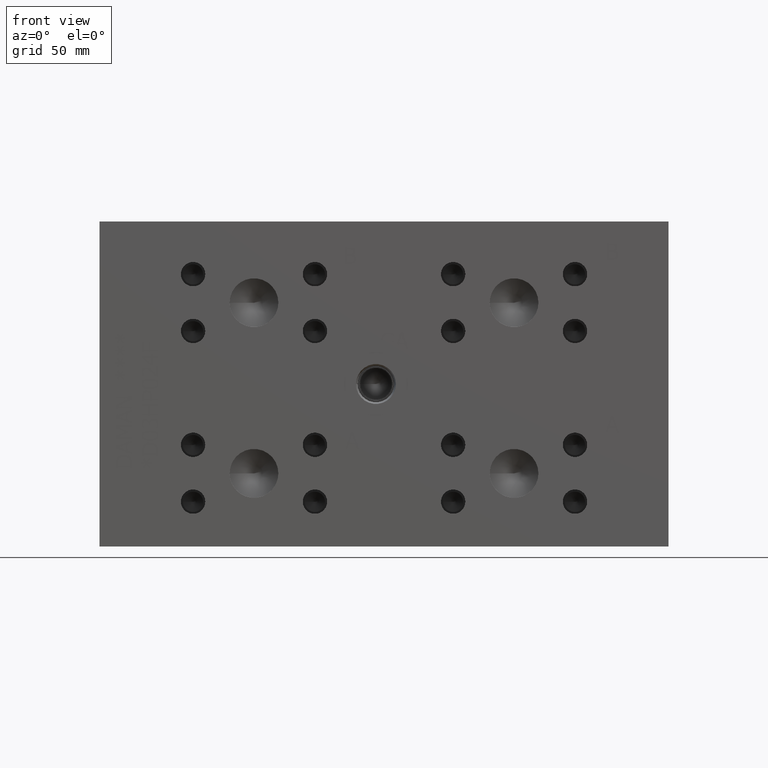
[diagram: clean part render]
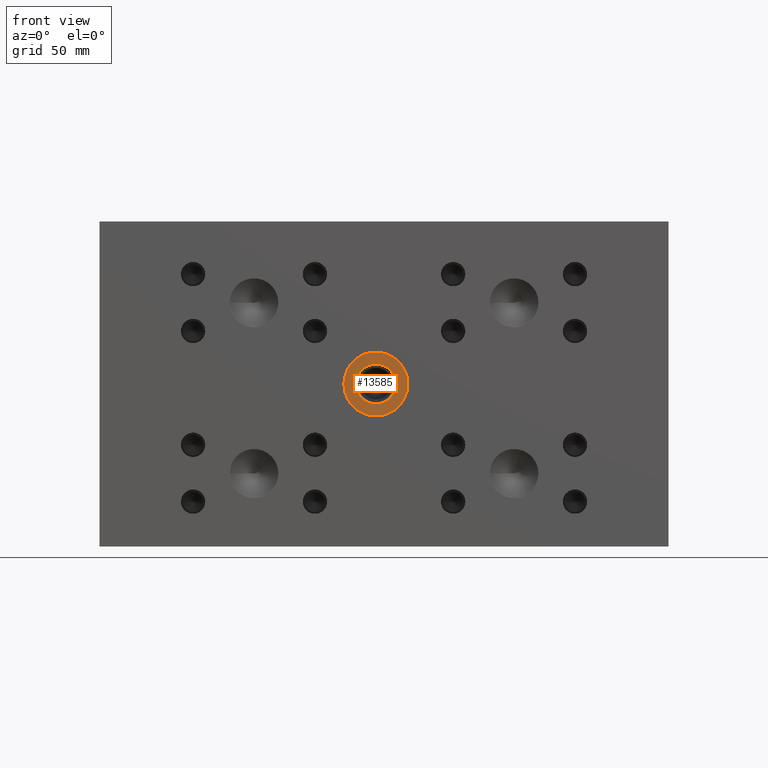
[diagram: same view with one face highlighted and labeled with its STEP entity id]
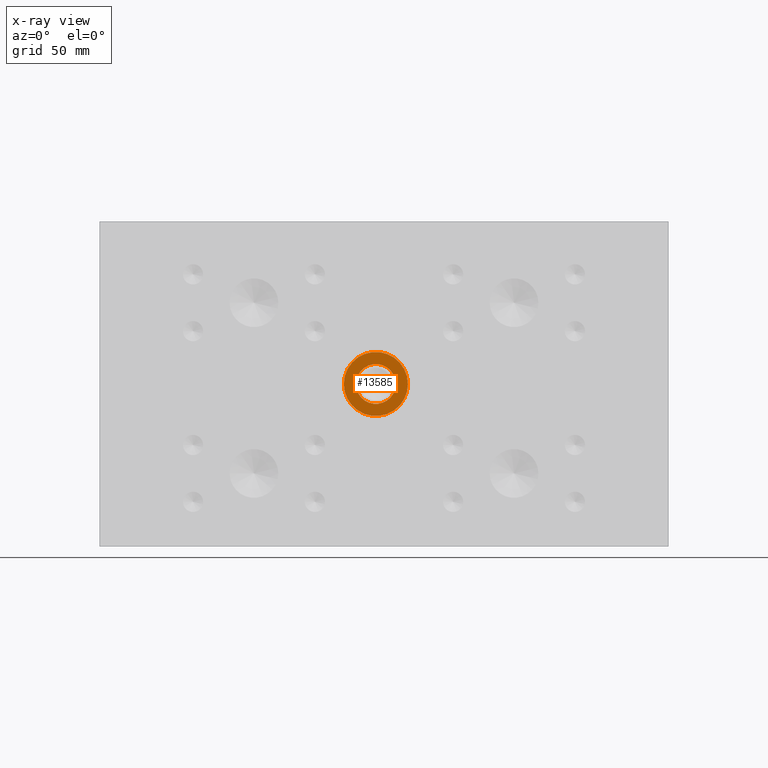
[diagram: x-ray of the same camera — body ghosted, the highlighted face saturated]
A machine part, front view. The second image highlights one B-rep face of the part: STEP entity #13585.
The next image is the same camera in x-ray: the body ghosted, the highlighted face saturated — about 0% of this face is hidden behind the body in this view.
In plain terms, the highlighted planar face has unit normal (0, 1, 0).
Its self-contained STEP definition (entity closure, byte-faithful):
#398=CIRCLE('',#14378,12.5095);
#399=CIRCLE('',#14379,12.5095);
#400=CIRCLE('',#14381,7.79780000000001);
#401=CIRCLE('',#14382,7.79780000000001);
#702=FACE_BOUND('',#2548,.T.);
#1727=FACE_OUTER_BOUND('',#2547,.T.);
#2547=EDGE_LOOP('',(#11491,#11492));
#2548=EDGE_LOOP('',(#11493,#11494));
#6262=VERTEX_POINT('',#22902);
#6263=VERTEX_POINT('',#22904);
#6264=VERTEX_POINT('',#22908);
#6265=VERTEX_POINT('',#22909);
#8082=EDGE_CURVE('',#6262,#6263,#398,.T.);
#8083=EDGE_CURVE('',#6263,#6262,#399,.T.);
#8084=EDGE_CURVE('',#6264,#6265,#400,.T.);
#8085=EDGE_CURVE('',#6265,#6264,#401,.T.);
#11491=ORIENTED_EDGE('',*,*,#8083,.F.);
#11492=ORIENTED_EDGE('',*,*,#8082,.F.);
#11493=ORIENTED_EDGE('',*,*,#8084,.T.);
#11494=ORIENTED_EDGE('',*,*,#8085,.T.);
#12517=PLANE('',#14380);
#13585=ADVANCED_FACE('',(#1727,#702),#12517,.F.);
#14378=AXIS2_PLACEMENT_3D('',#22905,#17107,#17108);
#14379=AXIS2_PLACEMENT_3D('',#22906,#17109,#17110);
#14380=AXIS2_PLACEMENT_3D('',#22907,#17111,#17112);
#14381=AXIS2_PLACEMENT_3D('',#22910,#17113,#17114);
#14382=AXIS2_PLACEMENT_3D('',#22911,#17115,#17116);
#17107=DIRECTION('center_axis',(0.,1.,0.));
#17108=DIRECTION('ref_axis',(1.,0.,0.));
#17109=DIRECTION('center_axis',(0.,1.,0.));
#17110=DIRECTION('ref_axis',(1.,0.,0.));
#17111=DIRECTION('center_axis',(0.,1.,0.));
#17112=DIRECTION('ref_axis',(0.,0.,1.));
#17113=DIRECTION('center_axis',(0.,1.,0.));
#17114=DIRECTION('ref_axis',(1.,0.,0.));
#17115=DIRECTION('center_axis',(0.,1.,0.));
#17116=DIRECTION('ref_axis',(1.,0.,0.));
#22902=CARTESIAN_POINT('',(95.4405,0.7874,63.5));
#22904=CARTESIAN_POINT('',(120.4595,0.7874,63.5));
#22905=CARTESIAN_POINT('Origin',(107.95,0.7874,63.5));
#22906=CARTESIAN_POINT('Origin',(107.95,0.7874,63.5));
#22907=CARTESIAN_POINT('Origin',(115.7478,0.7874,63.5));
#22908=CARTESIAN_POINT('',(115.7478,0.7874,63.5));
#22909=CARTESIAN_POINT('',(100.1522,0.787399999999998,63.5));
#22910=CARTESIAN_POINT('Origin',(107.95,0.7874,63.5));
#22911=CARTESIAN_POINT('Origin',(107.95,0.7874,63.5));